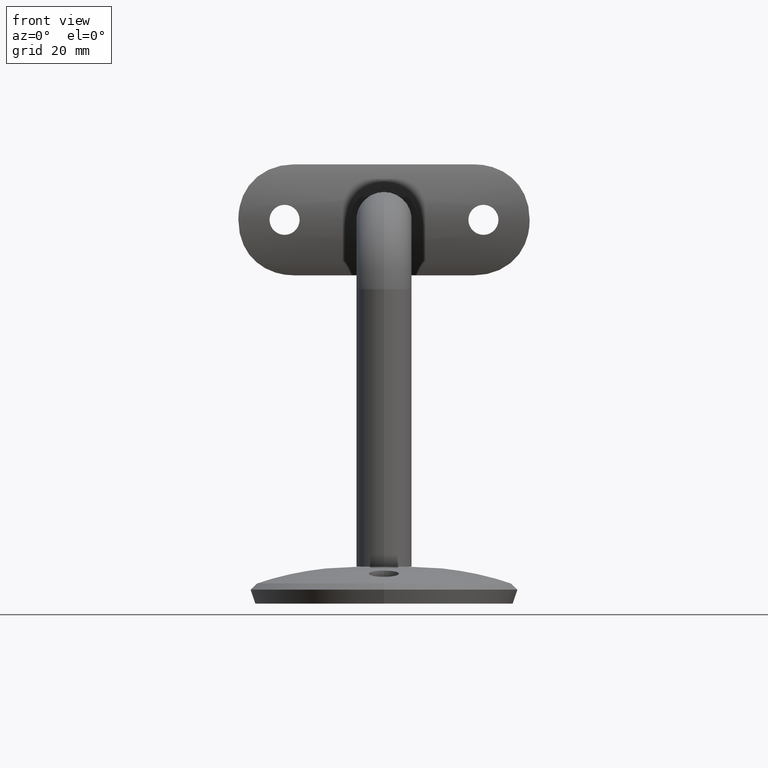
[diagram: clean part render]
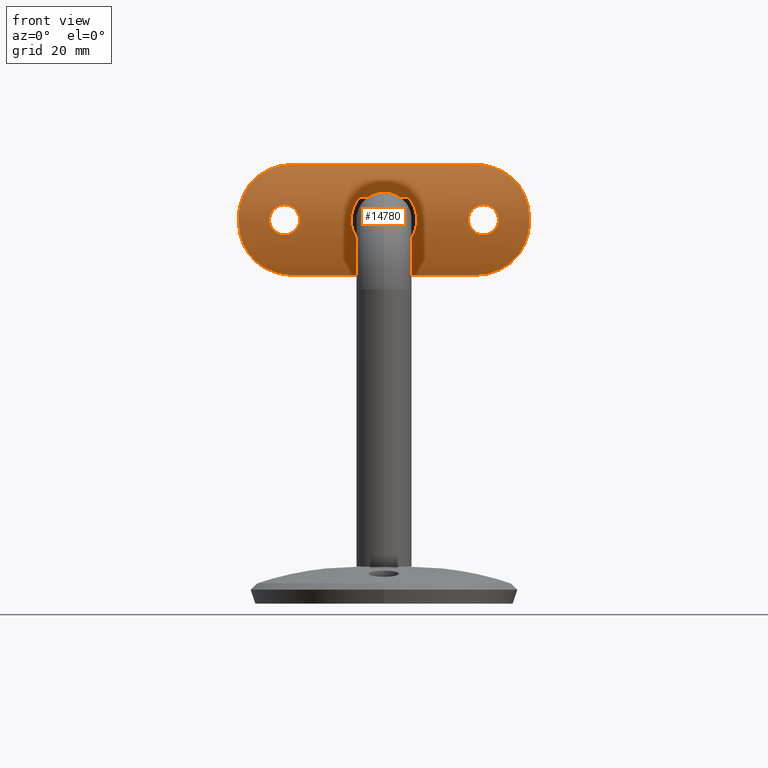
[diagram: same view with one face highlighted and labeled with its STEP entity id]
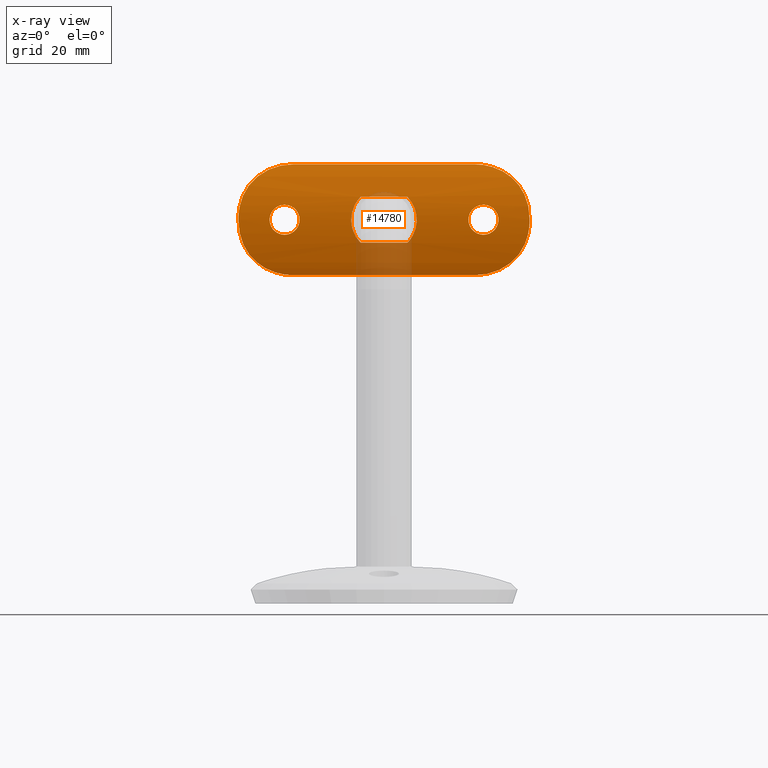
[diagram: x-ray of the same camera — body ghosted, the highlighted face saturated]
A machine part, front view. The second image highlights one B-rep face of the part: STEP entity #14780.
The next image is the same camera in x-ray: the body ghosted, the highlighted face saturated — about 7% of this face is hidden behind the body in this view.
In plain terms, the highlighted cylindrical surface (partial cylindrical patch) has radius 24.9 mm, axis along (-1, -0, -0).
Its self-contained STEP definition (entity closure, byte-faithful):
#27 = CARTESIAN_POINT ( 'NONE',  ( -2.821821168969854465, -3.539874073407934141, -23.12632054234559931 ) ) ;
#58 = EDGE_LOOP ( 'NONE', ( #2296, #10685, #10964, #12882, #10568, #4085 ) ) ;
#85 = EDGE_CURVE ( 'NONE', #3273, #16066, #12902, .T. ) ;
#101 = CARTESIAN_POINT ( 'NONE',  ( 2.584365611345395219, -3.565804050768281996, 19.51799543005816417 ) ) ;
#132 = CARTESIAN_POINT ( 'NONE',  ( -1.631627379172236214, -3.647122264414898396, -24.31886029199424470 ) ) ;
#150 = CARTESIAN_POINT ( 'NONE',  ( -2.146685540703188178, -3.607748755027697207, 19.05069189656504136 ) ) ;
#151 = CARTESIAN_POINT ( 'NONE',  ( 3.229256190507530988, -3.489748422613172973, 21.92447517388427869 ) ) ;
#201 = CARTESIAN_POINT ( 'NONE',  ( -2.819524886703820510, -3.540136434465608772, 19.86972966992424006 ) ) ;
#202 = CARTESIAN_POINT ( 'NONE',  ( 2.921291525389158927, -3.528178234305179295, 20.05987320755157555 ) ) ;
#210 = CARTESIAN_POINT ( 'NONE',  ( 3.704398101367908147, -3.423671542610197349, 6.061365502583002218 ) ) ;
#260 = CARTESIAN_POINT ( 'NONE',  ( 3.980101584964834788E-16, -3.699999999999955769, 18.25000000000000000 ) ) ;
#268 = CARTESIAN_POINT ( 'NONE',  ( -3.111721533360751746, -3.505646597793688812, 6.385896125220556385 ) ) ;
#309 = CARTESIAN_POINT ( 'NONE',  ( 1.981835697622200465, -3.621637099023633066, -24.08455317125303452 ) ) ;
#343 = CARTESIAN_POINT ( 'NONE',  ( 11.99999999999998224, -0.6176534026920421638, 19.50000000000000000 ) ) ;
#373 = CARTESIAN_POINT ( 'NONE',  ( -2.901699150288104434, -3.531270379057780850, 6.484038188702958116 ) ) ;
#415 = VERTEX_POINT ( 'NONE', #16284 ) ;
#518 = CARTESIAN_POINT ( 'NONE',  ( 7.494247687663859736, -2.555515036344145230, 29.19387504587054849 ) ) ;
#591 = EDGE_CURVE ( 'NONE', #1071, #415, #6147, .T. ) ;
#602 = CARTESIAN_POINT ( 'NONE',  ( -4.964876634922524623, -3.199999999999980638, 31.49999999999999289 ) ) ;
#703 = EDGE_CURVE ( 'NONE', #8314, #2510, #5169, .T. ) ;
#706 = CARTESIAN_POINT ( 'NONE',  ( -0.8125589719993389082, -3.699999999999994849, 31.50000000000000000 ) ) ;
#732 = CARTESIAN_POINT ( 'NONE',  ( 8.908510052025794934, -2.053669611251279115, -27.87937364185427569 ) ) ;
#785 = CARTESIAN_POINT ( 'NONE',  ( 2.794747767780301650, -3.545827601457929745, -31.23757162576539770 ) ) ;
#815 = CARTESIAN_POINT ( 'NONE',  ( -8.362564540343099040, -2.255537001843978206, 28.43211677885593858 ) ) ;
#816 = CARTESIAN_POINT ( 'NONE',  ( 3.084324042621155115, -3.508372835214869312, -20.45364702191493222 ) ) ;
#935 = CARTESIAN_POINT ( 'NONE',  ( -3.974160166930936100, -3.383932077341117672, -30.94271765376581484 ) ) ;
#1071 = VERTEX_POINT ( 'NONE', #13707 ) ;
#1210 = CARTESIAN_POINT ( 'NONE',  ( 0.4591875355903428657, -3.699999999999958433, -7.100000000000004086 ) ) ;
#1379 = CARTESIAN_POINT ( 'NONE',  ( -2.586209114153337651, -3.565612576627270602, 23.47967563857616469 ) ) ;
#1380 = CARTESIAN_POINT ( 'NONE',  ( 2.146750992436762484, -3.607753381938945125, 19.05052876677854456 ) ) ;
#1430 = CARTESIAN_POINT ( 'NONE',  ( -3.146818807308014776, -3.500389802327922961, 22.33960540480606483 ) ) ;
#1432 = CARTESIAN_POINT ( 'NONE',  ( 1.047393586680334332, -3.678741276189796405, 18.41603887102827031 ) ) ;
#1440 = CARTESIAN_POINT ( 'NONE',  ( -1.827830933494215104, -3.636904553612672508, 6.875981570658942665 ) ) ;
#1478 = CARTESIAN_POINT ( 'NONE',  ( -1.387778780781445676E-14, -3.700000000000009059, -31.50000000000000000 ) ) ;
#1488 = CARTESIAN_POINT ( 'NONE',  ( -3.082957173500505910, -3.508544189864433616, 20.44963851398086163 ) ) ;
#1489 = CARTESIAN_POINT ( 'NONE',  ( 2.148852459624776223, -3.607560168819034185, 23.94740334920764369 ) ) ;
#1738 = CARTESIAN_POINT ( 'NONE',  ( 4.352835420540750455, -3.319471389484620172, 30.82115928304209973 ) ) ;
#1893 = CARTESIAN_POINT ( 'NONE',  ( 1.427579796631251796E-14, -3.699999999999957989, -18.25000000000000000 ) ) ;
#1902 = CARTESIAN_POINT ( 'NONE',  ( 3.974160166930929883, -3.383932077341118561, 30.94271765376582550 ) ) ;
#1918 = CARTESIAN_POINT ( 'NONE',  ( 1.630997491512143238, -3.647151806679330921, -18.68093415040938865 ) ) ;
#1953 = CARTESIAN_POINT ( 'NONE',  ( 9.171811217397619842, -1.950748238831671699, 27.58196296880782228 ) ) ;
#1966 = ORIENTED_EDGE ( 'NONE', *, *, #12628, .T. ) ;
#1974 = CARTESIAN_POINT ( 'NONE',  ( 2.146750992436829097, -3.607753381938938908, -19.05052876677858720 ) ) ;
#2047 = CARTESIAN_POINT ( 'NONE',  ( 3.515929554202463336, -3.451370864205254740, -6.172583524609211558 ) ) ;
#2093 = CARTESIAN_POINT ( 'NONE',  ( -2.794747767780315861, -3.545827601457930189, 31.23757162576539415 ) ) ;
#2118 = CARTESIAN_POINT ( 'NONE',  ( -1.818617320225509815, -3.634477642372423656, -6.866971293440959911 ) ) ;
#2150 = CARTESIAN_POINT ( 'NONE',  ( -6.156121038829917680, -2.936724213265677896, 30.05584034722584619 ) ) ;
#2158 = CARTESIAN_POINT ( 'NONE',  ( -11.41507547166431102, -0.9296299401162885223, -23.45386468381837020 ) ) ;
#2257 = CARTESIAN_POINT ( 'NONE',  ( -11.99999999999998224, -0.6176534026920421638, -19.50000000000000355 ) ) ;
#2275 = CARTESIAN_POINT ( 'NONE',  ( -11.92848342012839602, -0.6574244313320016797, -21.11270732962849905 ) ) ;
#2296 = ORIENTED_EDGE ( 'NONE', *, *, #14938, .T. ) ;
#2325 = CARTESIAN_POINT ( 'NONE',  ( -10.51663599609495847, -1.374778303228647580, -25.65040292986301296 ) ) ;
#2391 = CARTESIAN_POINT ( 'NONE',  ( 12.00000000000003908, -0.6176534026920421638, -19.50000000000000355 ) ) ;
#2437 = CARTESIAN_POINT ( 'NONE',  ( -1.912593264708343122E-23, -3.699999999999955769, -7.100000000000000533 ) ) ;
#2510 = VERTEX_POINT ( 'NONE', #1893 ) ;
#2592 = CARTESIAN_POINT ( 'NONE',  ( -3.249848216891555897, -3.487010483052722432, -21.28285409738491296 ) ) ;
#2607 = CARTESIAN_POINT ( 'NONE',  ( 1.981835697622205128, -3.621637099023632622, 24.08455317125301320 ) ) ;
#2636 = LINE ( 'NONE', #10033, #4044 ) ;
#2650 = VERTEX_POINT ( 'NONE', #6074 ) ;
#2672 = CARTESIAN_POINT ( 'NONE',  ( 3.083248104138778256, -3.508505602359180298, 22.54922712429804932 ) ) ;
#2690 = CARTESIAN_POINT ( 'NONE',  ( -0.4273914753737551031, -3.697218224539782661, -24.72888696096771000 ) ) ;
#2703 = CARTESIAN_POINT ( 'NONE',  ( -3.228575707555535690, -3.489836929451472169, -21.07143069725907125 ) ) ;
#2704 = CARTESIAN_POINT ( 'NONE',  ( 0.000000000000000000, -3.699999999999994849, 31.50000000000000000 ) ) ;
#2727 = CARTESIAN_POINT ( 'NONE',  ( 2.894113515964097605, -3.532149142121155716, 6.487380250528087089 ) ) ;
#2773 = CARTESIAN_POINT ( 'NONE',  ( -0.4232112014913344544, -3.697288328665035095, 18.27057670183492988 ) ) ;
#2781 = CARTESIAN_POINT ( 'NONE',  ( -2.264874394996043705, -3.600457940495205289, 6.744685369997291069 ) ) ;
#2817 = B_SPLINE_CURVE_WITH_KNOTS ( 'NONE', 3,
 ( #8469, #9591, #9650, #785, #13457, #5835, #10881, #3363, #14957, #12166, #7198, #4492, #7138, #732, #9713, #7247, #3490, #11163, #4828, #13688, #6018, #11108, #11220, #15007 ),
 .UNSPECIFIED., .F., .F.,
 ( 4, 2, 2, 2, 2, 2, 2, 2, 2, 2, 2, 4 ),
 ( 1.077696660413050107E-18, 0.002406420888280984185, 0.003609631332421476928, 0.004812841776561968370, 0.007219262664842951253, 0.008422473108983443563, 0.009625683553123935005, 0.01082889399726442818, 0.01203210444140491789, 0.01443852532968589383, 0.01684494621796686978, 0.01925136710624784572 ),
 .UNSPECIFIED. ) ;
#2830 = CARTESIAN_POINT ( 'NONE',  ( 0.8447782825700491660, -3.686539391269241239, 18.35451960182217590 ) ) ;
#2838 = CARTESIAN_POINT ( 'NONE',  ( -4.964876634922537946, -3.199999999999980638, 5.075431016179841492 ) ) ;
#2844 = FACE_BOUND ( 'NONE', #10286, .T. ) ;
#2951 = B_SPLINE_CURVE_WITH_KNOTS ( 'NONE', 3,
 ( #2838, #9292, #7907, #15710, #8004, #268, #373, #2781, #1440, #10583, #15602, #10420, #5380, #15652, #9225, #14429, #13111, #2727, #13045, #5489, #210, #11865, #4195, #14373 ),
 .UNSPECIFIED., .F., .F.,
 ( 4, 2, 2, 2, 2, 2, 2, 2, 2, 2, 2, 4 ),
 ( 1.226634733346698579E-18, 0.001374055046406982969, 0.002061082569610473477, 0.002748110092813964202, 0.004122165139220946087, 0.005496220185627927537, 0.006870275232034908988, 0.007557302755238399714, 0.008244330278441892174, 0.008931357801645382899, 0.009618385324848873624, 0.01099244037125585507 ),
 .UNSPECIFIED. ) ;
#3049 = CARTESIAN_POINT ( 'NONE',  ( 0.2149818604170492253, -3.700000000000009059, -24.75000000000000355 ) ) ;
#3066 = DIRECTION ( 'NONE',  ( 1.232595164407830946E-30, 8.474091755303629748E-33, 1.000000000000000000 ) ) ;
#3070 = EDGE_CURVE ( 'NONE', #2510, #8314, #8122, .T. ) ;
#3159 = CARTESIAN_POINT ( 'NONE',  ( 3.229256190507538538, -3.489748422613169421, -21.92447517388432132 ) ) ;
#3182 = CARTESIAN_POINT ( 'NONE',  ( -0.9142097955992289915, -3.687338515416148432, -7.055981841108258656 ) ) ;
#3184 = EDGE_CURVE ( 'NONE', #13377, #3273, #2951, .T. ) ;
#3266 = CARTESIAN_POINT ( 'NONE',  ( 6.164181800682563939, -2.934852511962067645, 30.05211743802890823 ) ) ;
#3273 = VERTEX_POINT ( 'NONE', #5543 ) ;
#3285 = CARTESIAN_POINT ( 'NONE',  ( -11.92848259060793481, -0.6574309275929175467, 21.11410712426871683 ) ) ;
#3335 = CARTESIAN_POINT ( 'NONE',  ( -8.074259893479316830, -2.356718930519063449, 28.69397140321249395 ) ) ;
#3336 = CARTESIAN_POINT ( 'NONE',  ( 2.921124191385757740, -3.528196485631363011, -22.94025341122287287 ) ) ;
#3363 = CARTESIAN_POINT ( 'NONE',  ( 5.455945028680424969, -3.106646016184952952, -30.40527435075046014 ) ) ;
#3455 = CARTESIAN_POINT ( 'NONE',  ( 0.000000000000000000, -3.699999999999994849, 31.50000000000000000 ) ) ;
#3490 = CARTESIAN_POINT ( 'NONE',  ( 9.880202087646566156, -1.657055889912163016, -26.65553979867361889 ) ) ;
#3526 = CARTESIAN_POINT ( 'NONE',  ( -11.71658496996890975, -0.7713009744624380604, -22.29178284133482890 ) ) ;
#3583 = CARTESIAN_POINT ( 'NONE',  ( -3.198330643184877697, -3.496848918690147023, -31.15048156429586612 ) ) ;
#3693 = CARTESIAN_POINT ( 'NONE',  ( -8.096501375618343488, -2.354069913744659015, -28.70234642595244878 ) ) ;
#3906 = CARTESIAN_POINT ( 'NONE',  ( -0.8474384682299330729, -3.686461918805215010, -24.64487241752245339 ) ) ;
#3957 = CARTESIAN_POINT ( 'NONE',  ( -2.919465209628889113, -3.528394687198925794, -20.05618315748948177 ) ) ;
#3974 = CARTESIAN_POINT ( 'NONE',  ( 2.582737021104910990, -3.565979664869273424, 23.48434641144977419 ) ) ;
#4002 = CARTESIAN_POINT ( 'NONE',  ( -2.921499772798140437, -3.528153329608617383, -22.93967651103448446 ) ) ;
#4018 = CARTESIAN_POINT ( 'NONE',  ( 0.4263252820595279657, -3.697218336159312280, 24.72887954699843149 ) ) ;
#4044 = VECTOR ( 'NONE', #6066, 1000.000000000000000 ) ;
#4064 = EDGE_CURVE ( 'NONE', #9093, #10442, #5825, .T. ) ;
#4080 = CARTESIAN_POINT ( 'NONE',  ( -2.919465209628931301, -3.528394687198924018, 20.05618315748954217 ) ) ;
#4081 = CARTESIAN_POINT ( 'NONE',  ( 3.249921384642546318, -3.487000850647956618, 21.71342907918753440 ) ) ;
#4085 = ORIENTED_EDGE ( 'NONE', *, *, #15258, .T. ) ;
#4195 = CARTESIAN_POINT ( 'NONE',  ( 4.636296391438902376, -3.266859031703641225, 5.396854037863799469 ) ) ;
#4346 = B_SPLINE_CURVE_WITH_KNOTS ( 'NONE', 3,
 ( #343, #9601, #13308, #12062, #9428, #16140, #8417, #15962, #13537, #13419, #12233, #1953, #12178, #6923, #518, #3266, #9547, #1738, #1902, #4504, #13472, #13360, #4560, #5620 ),
 .UNSPECIFIED., .F., .F.,
 ( 4, 2, 2, 2, 2, 2, 2, 2, 2, 2, 2, 4 ),
 ( 0.000000000000000000, 0.002405426272235855392, 0.003608139408353788508, 0.004810852544471721191, 0.007216278816707587425, 0.008418991952825517072, 0.009621705088943447587, 0.01202713136117931382, 0.01443255763341518352, 0.01563527076953311751, 0.01683798390565105149, 0.01924341017788691946 ),
 .UNSPECIFIED. ) ;
#4403 = CARTESIAN_POINT ( 'NONE',  ( 2.449870133762150459, -3.579655042198059522, -19.35370424367749820 ) ) ;
#4427 = CARTESIAN_POINT ( 'NONE',  ( -3.506564222652053253, -3.452700319270811224, -6.177880390645243303 ) ) ;
#4464 = CARTESIAN_POINT ( 'NONE',  ( 3.083248104138781809, -3.508505602359182518, -22.54922712429809195 ) ) ;
#4492 = CARTESIAN_POINT ( 'NONE',  ( 8.074259893479313277, -2.356718930519062116, -28.69397140321249040 ) ) ;
#4504 = CARTESIAN_POINT ( 'NONE',  ( 3.198330643184871480, -3.496848918690146579, 31.15048156429586612 ) ) ;
#4520 = CARTESIAN_POINT ( 'NONE',  ( -7.144447545478611161, -2.655485527817194047, 29.42030368926515749 ) ) ;
#4521 = CARTESIAN_POINT ( 'NONE',  ( 2.584365611345454283, -3.565804050768279332, -19.51799543005821747 ) ) ;
#4546 = CARTESIAN_POINT ( 'NONE',  ( -2.258265762077044769, -3.598364552420600937, -6.735198545714672136 ) ) ;
#4560 = CARTESIAN_POINT ( 'NONE',  ( 0.8129078222397844167, -3.699999999999996625, 31.50000000000000711 ) ) ;
#4579 = CARTESIAN_POINT ( 'NONE',  ( -12.00000000000000711, -0.6176534026920280640, 20.31329885972720461 ) ) ;
#4580 = CARTESIAN_POINT ( 'NONE',  ( 0.2122259090402325021, -3.699999999999959766, -18.25000000000000711 ) ) ;
#4635 = CARTESIAN_POINT ( 'NONE',  ( 2.921291525389208221, -3.528178234305173966, -20.05987320755163594 ) ) ;
#4642 = CARTESIAN_POINT ( 'NONE',  ( 3.712115778710233460, -3.422492633365217696, -6.056552769143648263 ) ) ;
#4654 = CARTESIAN_POINT ( 'NONE',  ( 4.964876634922524623, -3.199999999999994404, -5.075431016179847710 ) ) ;
#4751 = CARTESIAN_POINT ( 'NONE',  ( -10.51395294504077427, -1.376102020913399615, 25.65610659191668219 ) ) ;
#4812 = CARTESIAN_POINT ( 'NONE',  ( -6.164181800682563939, -2.934852511962063204, -30.05211743802889757 ) ) ;
#4828 = CARTESIAN_POINT ( 'NONE',  ( 10.86337671054184817, -1.207519595627805753, -24.95273175522528675 ) ) ;
#4875 = CARTESIAN_POINT ( 'NONE',  ( -0.8129078222397800868, -3.700000000000009059, -31.50000000000000000 ) ) ;
#5093 = VERTEX_POINT ( 'NONE', #9136 ) ;
#5143 = CARTESIAN_POINT ( 'NONE',  ( -1.628227239447951780, -3.647344750715938222, -18.67919517067782564 ) ) ;
#5157 = CARTESIAN_POINT ( 'NONE',  ( 3.250078171915089964, -3.486980209873603354, 21.28897191030376490 ) ) ;
#5169 = B_SPLINE_CURVE_WITH_KNOTS ( 'NONE', 3,
 ( #11854, #3049, #8213, #5643, #9513, #14419, #6714, #309, #5478, #14468, #9743, #9565, #3336, #4464, #9799, #3159, #8272, #12316, #10969, #5707, #816, #4635, #5815, #4521, #4403, #1974, #9685, #1918, #13436, #15979, #5760, #14695, #4580, #13555 ),
 .UNSPECIFIED., .F., .F.,
 ( 4, 2, 2, 2, 2, 2, 2, 2, 2, 2, 2, 2, 2, 2, 2, 2, 4 ),
 ( 8.612190294667262780E-19, 0.0006357393811927986461, 0.001271478762385596425, 0.001907218143578394420, 0.002542957524771191982, 0.003178696905963989978, 0.003814436287156787973, 0.004450175668349585535, 0.005085915049542383097, 0.005721654430735180659, 0.006357393811927979088, 0.006993133193120776650, 0.007628872574313575079, 0.008264611955506371774, 0.008900351336699169336, 0.009536090717891966898, 0.01017183009908476272 ),
 .UNSPECIFIED. ) ;
#5194 = CARTESIAN_POINT ( 'NONE',  ( -1.052308858703521199, -3.678523263202700733, -24.58219453111725272 ) ) ;
#5211 = CARTESIAN_POINT ( 'NONE',  ( 3.980101584964834788E-16, -3.699999999999955769, 18.25000000000000000 ) ) ;
#5247 = CARTESIAN_POINT ( 'NONE',  ( -2.819524886703771216, -3.540136434465613657, -19.86972966992417611 ) ) ;
#5268 = CARTESIAN_POINT ( 'NONE',  ( -0.2121748390877018497, -3.699999999999955769, 18.24999999999999645 ) ) ;
#5270 = CARTESIAN_POINT ( 'NONE',  ( 3.228883512651747445, -3.489796806255346162, 21.07337049124385331 ) ) ;
#5325 = EDGE_CURVE ( 'NONE', #5093, #2650, #6503, .T. ) ;
#5368 = EDGE_CURVE ( 'NONE', #9518, #10442, #2817, .T. ) ;
#5371 = CARTESIAN_POINT ( 'NONE',  ( -0.8474384682299345162, -3.686461918805215898, 24.64487241752246760 ) ) ;
#5380 = CARTESIAN_POINT ( 'NONE',  ( 0.9113910570558695357, -3.687447184312834469, 7.056363803575781191 ) ) ;
#5412 = B_SPLINE_CURVE_WITH_KNOTS ( 'NONE', 3,
 ( #3455, #706, #9684, #2093, #9854, #10912, #11020, #8504, #2150, #4520, #6049, #3335, #815, #11136, #5992, #14868, #12420, #4751, #12315, #13492, #5814, #3285, #4579, #7170 ),
 .UNSPECIFIED., .F., .F.,
 ( 4, 2, 2, 2, 2, 2, 2, 2, 2, 2, 2, 4 ),
 ( 1.355197106528107208E-17, 0.002406420888280987221, 0.003609631332421476060, 0.004812841776561964900, 0.007219262664842946049, 0.008422473108983440093, 0.009625683553123935005, 0.01082889399726443165, 0.01203210444140492656, 0.01443852532968591985, 0.01684494621796691141, 0.01925136710624790817 ),
 .UNSPECIFIED. ) ;
#5478 = CARTESIAN_POINT ( 'NONE',  ( 2.148852459624776667, -3.607560168819032409, -23.94740334920767211 ) ) ;
#5489 = CARTESIAN_POINT ( 'NONE',  ( 3.505576954194434602, -3.452841900581999024, 6.178445786202248158 ) ) ;
#5495 = ORIENTED_EDGE ( 'NONE', *, *, #3184, .T. ) ;
#5543 = CARTESIAN_POINT ( 'NONE',  ( 4.964876634922524623, -3.199999999999994404, 5.075431016179845933 ) ) ;
#5558 = CARTESIAN_POINT ( 'NONE',  ( -0.4586185383962279594, -3.699999999999956657, -7.100000000000003197 ) ) ;
#5620 = CARTESIAN_POINT ( 'NONE',  ( 0.000000000000000000, -3.699999999999994849, 31.50000000000000000 ) ) ;
#5643 = CARTESIAN_POINT ( 'NONE',  ( 0.8420467231033936795, -3.686626758976825791, -24.64616809647208839 ) ) ;
#5707 = CARTESIAN_POINT ( 'NONE',  ( 3.145785620554968354, -3.500522016790668545, -20.65635652937660538 ) ) ;
#5760 = CARTESIAN_POINT ( 'NONE',  ( 0.8447782825700990150, -3.686539391269237687, -18.35451960182218301 ) ) ;
#5814 = CARTESIAN_POINT ( 'NONE',  ( -11.64449887647194792, -0.8100347474686064864, 22.69149219421942476 ) ) ;
#5815 = CARTESIAN_POINT ( 'NONE',  ( 2.819576935934251072, -3.540128976957720663, -19.86988539337790272 ) ) ;
#5825 = LINE ( 'NONE', #11049, #8222 ) ;
#5835 = CARTESIAN_POINT ( 'NONE',  ( 3.959980470126862162, -3.386209395477720374, -30.94697538539422155 ) ) ;
#5886 = CARTESIAN_POINT ( 'NONE',  ( 4.964876634922524623, -3.199999999999994404, -5.075431016179847710 ) ) ;
#5945 = CARTESIAN_POINT ( 'NONE',  ( 2.263000646222576684, -3.600634038521774105, -6.745332863304843940 ) ) ;
#5992 = CARTESIAN_POINT ( 'NONE',  ( -9.166149050193574510, -1.952978448765979591, 27.58848537800124134 ) ) ;
#6003 = CARTESIAN_POINT ( 'NONE',  ( 4.281639884066061441, -3.332128893389513458, -5.681909881638310011 ) ) ;
#6018 = CARTESIAN_POINT ( 'NONE',  ( 11.64449887647196391, -0.8100347474685984928, -22.69149219421943897 ) ) ;
#6049 = CARTESIAN_POINT ( 'NONE',  ( -7.465386431756488861, -2.556697687672626618, 29.18815436188812740 ) ) ;
#6055 = CARTESIAN_POINT ( 'NONE',  ( -11.28972141810762508, -0.9940804612480560465, -23.83666306912913413 ) ) ;
#6066 = DIRECTION ( 'NONE',  ( -1.232595164407830946E-30, -8.474091755303629748E-33, -1.000000000000000000 ) ) ;
#6074 = CARTESIAN_POINT ( 'NONE',  ( -4.964876634922524623, -3.199999999999980638, -5.075431016179843269 ) ) ;
#6121 = CARTESIAN_POINT ( 'NONE',  ( -9.171811217397602078, -1.950748238831676806, -27.58196296880780807 ) ) ;
#6147 = B_SPLINE_CURVE_WITH_KNOTS ( 'NONE', 3,
 ( #260, #5268, #2773, #15544, #9164, #10464, #14251, #6555, #150, #7897, #6449, #201, #4080, #1488, #12987, #6605, #11700, #7787, #11747, #1430, #6658, #7744, #9061, #1379, #13036, #12885, #14364, #7944, #14307, #12823, #5371, #15486, #15642, #11593 ),
 .UNSPECIFIED., .F., .F.,
 ( 4, 2, 2, 2, 2, 2, 2, 2, 2, 2, 2, 2, 2, 2, 2, 2, 4 ),
 ( 0.01017183009908487201, 0.01080741649622329187, 0.01144300289336171172, 0.01207858929050013158, 0.01271417568763854970, 0.01334976208477696956, 0.01398534848191538768, 0.01462093487905380754, 0.01525652127619222739, 0.01589210767333064378, 0.01652769407046906364, 0.01716328046760748349, 0.01779886686474590335, 0.01843445326188432321, 0.01907003965902274306, 0.01970562605616116292, 0.02034121245329958277 ),
 .UNSPECIFIED. ) ;
#6278 = CARTESIAN_POINT ( 'NONE',  ( -10.86543210599208287, -1.206527040695204667, -24.94850832163288601 ) ) ;
#6292 = FACE_OUTER_BOUND ( 'NONE', #58, .T. ) ;
#6449 = CARTESIAN_POINT ( 'NONE',  ( -2.583679710951853448, -3.565877140410970814, 19.51704738153347662 ) ) ;
#6450 = CARTESIAN_POINT ( 'NONE',  ( 0.2122259090402204007, -3.699999999999955325, 18.24999999999999645 ) ) ;
#6491 = CARTESIAN_POINT ( 'NONE',  ( -2.150086282832403661, -3.607452471063070654, -23.94631227737822954 ) ) ;
#6498 = VECTOR ( 'NONE', #14082, 1000.000000000000000 ) ;
#6503 = B_SPLINE_CURVE_WITH_KNOTS ( 'NONE', 3,
 ( #13125, #5558, #3182, #16240, #2118, #4546, #12340, #11042, #8527, #4427, #10994, #7081, #7016, #16182 ),
 .UNSPECIFIED., .F., .F.,
 ( 4, 2, 2, 2, 2, 2, 4 ),
 ( 0.005499627587204901011, 0.006872830783217636491, 0.007559432381224003364, 0.008246033979230371971, 0.008932635577236738844, 0.009619237175243107452, 0.01099244037125584467 ),
 .UNSPECIFIED. ) ;
#6511 = CARTESIAN_POINT ( 'NONE',  ( 2.448290363575883255, -3.579799892622895108, 23.64784178713651741 ) ) ;
#6555 = CARTESIAN_POINT ( 'NONE',  ( -1.983184028264872945, -3.621535935841004417, 18.91638916660368963 ) ) ;
#6605 = CARTESIAN_POINT ( 'NONE',  ( -3.228575707555557006, -3.489836929451471725, 21.07143069725913165 ) ) ;
#6606 = CARTESIAN_POINT ( 'NONE',  ( 2.449870133762092728, -3.579655042198061743, 19.35370424367744846 ) ) ;
#6658 = CARTESIAN_POINT ( 'NONE',  ( -3.084351378400045807, -3.508369120394307483, 22.54623417715432510 ) ) ;
#6673 = FACE_BOUND ( 'NONE', #11844, .T. ) ;
#6714 = CARTESIAN_POINT ( 'NONE',  ( 1.628699641122153041, -3.647307268334019525, -24.32044771382352977 ) ) ;
#6923 = CARTESIAN_POINT ( 'NONE',  ( 8.096501375618352370, -2.354069913744651910, 28.70234642595246299 ) ) ;
#6953 = CARTESIAN_POINT ( 'NONE',  ( 1.387778780781445676E-14, -3.699999999999994849, -24.75000000000000000 ) ) ;
#7016 = CARTESIAN_POINT ( 'NONE',  ( -4.636500095948909106, -3.266817582205193027, -5.396654770499321963 ) ) ;
#7081 = CARTESIAN_POINT ( 'NONE',  ( -4.280658070604807186, -3.332362613302141785, -5.683006983233183540 ) ) ;
#7097 = CARTESIAN_POINT ( 'NONE',  ( -4.964876634922537946, -3.199999999999980638, 5.075431016179841492 ) ) ;
#7138 = CARTESIAN_POINT ( 'NONE',  ( 8.362564540343097264, -2.255537001843978206, -28.43211677885594568 ) ) ;
#7170 = CARTESIAN_POINT ( 'NONE',  ( -12.00000000000001066, -0.6176534026920282860, 19.50000000000000000 ) ) ;
#7198 = CARTESIAN_POINT ( 'NONE',  ( 7.465386431756487084, -2.556697687672626174, -29.18815436188814161 ) ) ;
#7204 = DIRECTION ( 'NONE',  ( -1.232595164407830946E-30, -8.474091755303629748E-33, -1.000000000000000000 ) ) ;
#7247 = CARTESIAN_POINT ( 'NONE',  ( 9.651496139240752115, -1.754897554413251237, -26.97737785628718399 ) ) ;
#7403 = CARTESIAN_POINT ( 'NONE',  ( -11.62834804759313201, -0.8183103573893794058, -22.68144421163976787 ) ) ;
#7730 = CARTESIAN_POINT ( 'NONE',  ( -3.145628655883404345, -3.500541877894270737, -20.65596617013608594 ) ) ;
#7744 = CARTESIAN_POINT ( 'NONE',  ( -2.921499772798139549, -3.528153329608616051, 22.93967651103450223 ) ) ;
#7787 = CARTESIAN_POINT ( 'NONE',  ( -3.250150178362256170, -3.486970730352475734, 21.71257844186941099 ) ) ;
#7788 = CARTESIAN_POINT ( 'NONE',  ( 2.820318138835672173, -3.540050219768325679, 23.12909999587930798 ) ) ;
#7820 = CARTESIAN_POINT ( 'NONE',  ( -2.586209114153338540, -3.565612576627267494, -23.47967563857614692 ) ) ;
#7897 = CARTESIAN_POINT ( 'NONE',  ( -2.446447891969488087, -3.579982845335476060, 19.35005541743644386 ) ) ;
#7898 = CARTESIAN_POINT ( 'NONE',  ( 1.440859961367725983, -3.659057170068545695, 18.57908025749507175 ) ) ;
#7907 = CARTESIAN_POINT ( 'NONE',  ( -4.282078825921497689, -3.332048076451957552, 5.681556398469048474 ) ) ;
#7944 = CARTESIAN_POINT ( 'NONE',  ( -1.631627379172226666, -3.647122264414895731, 24.31886029199425536 ) ) ;
#8004 = CARTESIAN_POINT ( 'NONE',  ( -3.516909975170976477, -3.451229765324057563, 6.172019479054712932 ) ) ;
#8036 = CARTESIAN_POINT ( 'NONE',  ( -12.00000000000001066, -0.6176534026920282860, 19.50000000000000000 ) ) ;
#8084 = ORIENTED_EDGE ( 'NONE', *, *, #5325, .T. ) ;
#8094 = ORIENTED_EDGE ( 'NONE', *, *, #703, .F. ) ;
#8122 = B_SPLINE_CURVE_WITH_KNOTS ( 'NONE', 3,
 ( #8726, #11623, #15425, #15470, #12809, #12866, #5143, #10348, #14186, #12920, #12967, #5247, #3957, #14136, #7730, #2703, #2592, #10395, #14238, #15527, #11680, #4002, #27, #7820, #10294, #6491, #8991, #132, #11576, #5194, #3906, #2690, #8184, #13287 ),
 .UNSPECIFIED., .F., .F.,
 ( 4, 2, 2, 2, 2, 2, 2, 2, 2, 2, 2, 2, 2, 2, 2, 2, 4 ),
 ( 0.01017183009908476272, 0.01080741649622319125, 0.01144300289336161978, 0.01207858929050004831, 0.01271417568763847858, 0.01334976208477690537, 0.01398534848191533390, 0.01462093487905376070, 0.01525652127619218923, 0.01589210767333061602, 0.01652769407046904282, 0.01716328046760746961, 0.01779886686474589988, 0.01843445326188433014, 0.01907003965902275694, 0.01970562605616118373, 0.02034121245329961053 ),
 .UNSPECIFIED. ) ;
#8184 = CARTESIAN_POINT ( 'NONE',  ( -0.2149301272735424095, -3.700000000000009948, -24.75000000000000711 ) ) ;
#8213 = CARTESIAN_POINT ( 'NONE',  ( 0.4263252820595374026, -3.697218336159310503, -24.72887954699843505 ) ) ;
#8222 = VECTOR ( 'NONE', #7204, 1000.000000000000000 ) ;
#8272 = CARTESIAN_POINT ( 'NONE',  ( 3.249921384642556976, -3.487000850647957062, -21.71342907918760190 ) ) ;
#8314 = VERTEX_POINT ( 'NONE', #6953 ) ;
#8417 = CARTESIAN_POINT ( 'NONE',  ( 11.28972141810765173, -0.9940804612480439451, 23.83666306912914834 ) ) ;
#8469 = CARTESIAN_POINT ( 'NONE',  ( -1.387778780781445676E-14, -3.700000000000009059, -31.50000000000000000 ) ) ;
#8504 = CARTESIAN_POINT ( 'NONE',  ( -5.455945028680426745, -3.106646016184956949, 30.40527435075045304 ) ) ;
#8527 = CARTESIAN_POINT ( 'NONE',  ( -3.102125699781536738, -3.506850099154959377, -6.390541049978265775 ) ) ;
#8559 = CARTESIAN_POINT ( 'NONE',  ( -8.913816326006855917, -2.051629287276890423, -27.87356755031017741 ) ) ;
#8610 = CARTESIAN_POINT ( 'NONE',  ( -5.461449533831193470, -3.105332391508203393, -30.40257824629768635 ) ) ;
#8726 = CARTESIAN_POINT ( 'NONE',  ( 1.427579796631251796E-14, -3.699999999999957989, -18.25000000000000000 ) ) ;
#8778 = CARTESIAN_POINT ( 'NONE',  ( -1.615684953159067350, -3.660259510916433978, -31.43706210126418554 ) ) ;
#8871 = FACE_BOUND ( 'NONE', #16669, .T. ) ;
#8991 = CARTESIAN_POINT ( 'NONE',  ( -1.986735340249592197, -3.621252494889342088, -24.08090370569103911 ) ) ;
#9061 = CARTESIAN_POINT ( 'NONE',  ( -2.821821168969855798, -3.539874073407938138, 23.12632054234562062 ) ) ;
#9093 = VERTEX_POINT ( 'NONE', #11809 ) ;
#9117 = CARTESIAN_POINT ( 'NONE',  ( 3.084324042621118256, -3.508372835214873309, 20.45364702191486828 ) ) ;
#9136 = CARTESIAN_POINT ( 'NONE',  ( -1.912593264708343122E-23, -3.699999999999955769, -7.100000000000000533 ) ) ;
#9164 = CARTESIAN_POINT ( 'NONE',  ( -1.047902027870931008, -3.678710684825324595, 18.41629945653652101 ) ) ;
#9201 = EDGE_CURVE ( 'NONE', #16066, #5093, #12991, .T. ) ;
#9225 = CARTESIAN_POINT ( 'NONE',  ( 1.816407414500716078, -3.634640825242651196, 6.867561215927577400 ) ) ;
#9292 = CARTESIAN_POINT ( 'NONE',  ( -4.636331865773972716, -3.266851813437346319, 5.396819336240088028 ) ) ;
#9428 = CARTESIAN_POINT ( 'NONE',  ( 11.62834804759316043, -0.8183103573893641958, 22.68144421163977142 ) ) ;
#9513 = CARTESIAN_POINT ( 'NONE',  ( 1.048596989939906132, -3.678690743907806038, -24.58355611844455524 ) ) ;
#9518 = VERTEX_POINT ( 'NONE', #1478 ) ;
#9547 = CARTESIAN_POINT ( 'NONE',  ( 5.461449533831189918, -3.105332391508201617, 30.40257824629771122 ) ) ;
#9565 = CARTESIAN_POINT ( 'NONE',  ( 2.820318138835721467, -3.540050219768321238, -23.12909999587925114 ) ) ;
#9591 = CARTESIAN_POINT ( 'NONE',  ( 0.8125589719993400184, -3.699999999999995293, -31.50000000000000000 ) ) ;
#9601 = CARTESIAN_POINT ( 'NONE',  ( 11.99999999999998224, -0.6176534026920420528, 20.31330633155847210 ) ) ;
#9650 = CARTESIAN_POINT ( 'NONE',  ( 1.613102312184466980, -3.660295573399607871, -31.43708710865749367 ) ) ;
#9670 = VERTEX_POINT ( 'NONE', #2257 ) ;
#9684 = CARTESIAN_POINT ( 'NONE',  ( -1.613102312184478082, -3.660295573399607427, 31.43708710865748301 ) ) ;
#9685 = CARTESIAN_POINT ( 'NONE',  ( 1.982803818389583528, -3.621555042729827534, -18.91624805768305606 ) ) ;
#9713 = CARTESIAN_POINT ( 'NONE',  ( 9.166149050193579839, -1.952978448765980479, -27.58848537800126266 ) ) ;
#9743 = CARTESIAN_POINT ( 'NONE',  ( 2.582737021104940744, -3.565979664869272536, -23.48434641144975998 ) ) ;
#9755 = CARTESIAN_POINT ( 'NONE',  ( 4.636128183256395197, -3.266893258460819460, -5.397018582091170913 ) ) ;
#9799 = CARTESIAN_POINT ( 'NONE',  ( 3.145741730984334072, -3.500527963543703880, -22.34414671658372598 ) ) ;
#9854 = CARTESIAN_POINT ( 'NONE',  ( -3.185422266228734589, -3.498506488204446985, 31.15346151089248750 ) ) ;
#10033 = CARTESIAN_POINT ( 'NONE',  ( -11.99999999999998224, -0.6176534026920282860, 31.49999999999999289 ) ) ;
#10149 = CARTESIAN_POINT ( 'NONE',  ( 0.000000000000000000, -3.699999999999994849, 24.74999999999999645 ) ) ;
#10286 = EDGE_LOOP ( 'NONE', ( #8094, #11127 ) ) ;
#10294 = CARTESIAN_POINT ( 'NONE',  ( -2.449262616600626608, -3.579703020064626262, -23.64672481166034856 ) ) ;
#10348 = CARTESIAN_POINT ( 'NONE',  ( -1.983184028264795673, -3.621535935841007525, -18.91638916660364345 ) ) ;
#10395 = CARTESIAN_POINT ( 'NONE',  ( -3.250150178362246844, -3.486970730352478842, -21.71257844186934705 ) ) ;
#10420 = CARTESIAN_POINT ( 'NONE',  ( 0.4555041638599978127, -3.700062688236566810, 7.100219850317972536 ) ) ;
#10442 = VERTEX_POINT ( 'NONE', #2391 ) ;
#10464 = CARTESIAN_POINT ( 'NONE',  ( -1.439045858799200106, -3.659153063118034233, 18.57827880898163642 ) ) ;
#10477 = ORIENTED_EDGE ( 'NONE', *, *, #9201, .T. ) ;
#10568 = ORIENTED_EDGE ( 'NONE', *, *, #15558, .T. ) ;
#10583 = CARTESIAN_POINT ( 'NONE',  ( -0.9285590918302099039, -3.686754945948330420, 7.053925608798211400 ) ) ;
#10595 = LINE ( 'NONE', #602, #12981 ) ;
#10685 = ORIENTED_EDGE ( 'NONE', *, *, #11555, .T. ) ;
#10708 = CARTESIAN_POINT ( 'NONE',  ( 0.000000000000000000, 21.20000000000003837, 31.49999999999983302 ) ) ;
#10881 = CARTESIAN_POINT ( 'NONE',  ( 4.343585444218811098, -3.321130880666872898, -30.82433790244266447 ) ) ;
#10912 = CARTESIAN_POINT ( 'NONE',  ( -3.959980470126878593, -3.386209395477715489, 30.94697538539420734 ) ) ;
#10964 = ORIENTED_EDGE ( 'NONE', *, *, #5368, .T. ) ;
#10969 = CARTESIAN_POINT ( 'NONE',  ( 3.228883512651770982, -3.489796806255342609, -21.07337049124391370 ) ) ;
#10994 = CARTESIAN_POINT ( 'NONE',  ( -3.705248419110428237, -3.423542522952965239, -6.060840257332938741 ) ) ;
#11020 = CARTESIAN_POINT ( 'NONE',  ( -4.343585444218804881, -3.321130880666874674, 30.82433790244266092 ) ) ;
#11042 = CARTESIAN_POINT ( 'NONE',  ( -2.895531408592574074, -3.531981876424771016, -6.486742510624910807 ) ) ;
#11049 = CARTESIAN_POINT ( 'NONE',  ( 11.99999999999999645, -0.6176534026917090969, 31.50000000000000000 ) ) ;
#11108 = CARTESIAN_POINT ( 'NONE',  ( 11.92848259060794547, -0.6574309275929089980, -21.11410712426873104 ) ) ;
#11127 = ORIENTED_EDGE ( 'NONE', *, *, #3070, .F. ) ;
#11136 = CARTESIAN_POINT ( 'NONE',  ( -8.908510052025787829, -2.053669611251280003, 27.87937364185425793 ) ) ;
#11163 = CARTESIAN_POINT ( 'NONE',  ( 10.51395294504078670, -1.376102020913393842, -25.65610659191669995 ) ) ;
#11202 = CARTESIAN_POINT ( 'NONE',  ( -11.99999999999998224, -0.6176534026920421638, -19.50000000000000355 ) ) ;
#11220 = CARTESIAN_POINT ( 'NONE',  ( 12.00000000000004086, -0.6176534026920421638, -20.31329885972721172 ) ) ;
#11319 = CARTESIAN_POINT ( 'NONE',  ( -2.803457390454650699, -3.544875466738512948, -31.23589290901536941 ) ) ;
#11366 = CARTESIAN_POINT ( 'NONE',  ( -9.887935222964594928, -1.653693335105058448, -26.64406495904743011 ) ) ;
#11555 = EDGE_CURVE ( 'NONE', #9670, #9518, #13968, .T. ) ;
#11576 = CARTESIAN_POINT ( 'NONE',  ( -1.443090599177618172, -3.658917177029031631, -24.41972029213760820 ) ) ;
#11593 = CARTESIAN_POINT ( 'NONE',  ( 0.000000000000000000, -3.699999999999994849, 24.74999999999999645 ) ) ;
#11623 = CARTESIAN_POINT ( 'NONE',  ( -0.2121748390876914692, -3.699999999999957989, -18.24999999999999289 ) ) ;
#11639 = CARTESIAN_POINT ( 'NONE',  ( 1.982803818389511141, -3.621555042729831531, 18.91624805768300632 ) ) ;
#11680 = CARTESIAN_POINT ( 'NONE',  ( -3.084351378400050248, -3.508369120394307483, -22.54623417715427536 ) ) ;
#11690 = VERTEX_POINT ( 'NONE', #2704 ) ;
#11700 = CARTESIAN_POINT ( 'NONE',  ( -3.249848216891571884, -3.487010483052713994, 21.28285409738498046 ) ) ;
#11701 = CARTESIAN_POINT ( 'NONE',  ( 1.442102780649956228, -3.658985263850909497, 24.42031052337752328 ) ) ;
#11717 = VERTEX_POINT ( 'NONE', #8036 ) ;
#11742 = CARTESIAN_POINT ( 'NONE',  ( 4.964876634922524623, -3.199999999999994404, 31.49999999999998579 ) ) ;
#11747 = CARTESIAN_POINT ( 'NONE',  ( -3.229201240444566690, -3.489754643205427609, 21.92386930829948355 ) ) ;
#11809 = CARTESIAN_POINT ( 'NONE',  ( 11.99999999999998224, -0.6176534026920421638, 19.50000000000000000 ) ) ;
#11844 = EDGE_LOOP ( 'NONE', ( #5495, #15191, #10477, #8084, #14951 ) ) ;
#11854 = CARTESIAN_POINT ( 'NONE',  ( 1.387778780781445676E-14, -3.699999999999994849, -24.75000000000000000 ) ) ;
#11865 = CARTESIAN_POINT ( 'NONE',  ( 4.280216917462788651, -3.332443931792640868, 5.683362678621755926 ) ) ;
#12062 = CARTESIAN_POINT ( 'NONE',  ( 11.71658496996893284, -0.7713009744624195196, 22.29178284133484311 ) ) ;
#12166 = CARTESIAN_POINT ( 'NONE',  ( 7.144447545478609385, -2.655485527817194047, -29.42030368926517170 ) ) ;
#12178 = CARTESIAN_POINT ( 'NONE',  ( 8.913816326006871904, -2.051629287276880653, 27.87356755031019873 ) ) ;
#12233 = CARTESIAN_POINT ( 'NONE',  ( 9.659094786861164295, -1.751713507356701838, 26.96718664785970532 ) ) ;
#12315 = CARTESIAN_POINT ( 'NONE',  ( -10.86337671054183573, -1.207519595627810416, 24.95273175522527609 ) ) ;
#12316 = CARTESIAN_POINT ( 'NONE',  ( 3.250078171915108172, -3.486980209873601577, -21.28897191030382174 ) ) ;
#12328 = CARTESIAN_POINT ( 'NONE',  ( 3.110441035698499501, -3.505809087705364480, -6.386525233789831724 ) ) ;
#12340 = CARTESIAN_POINT ( 'NONE',  ( -2.473601289892181310, -3.577738523372005375, -6.659071046019722218 ) ) ;
#12420 = CARTESIAN_POINT ( 'NONE',  ( -9.880202087646559050, -1.657055889912167679, 26.65553979867359757 ) ) ;
#12486 = CARTESIAN_POINT ( 'NONE',  ( -9.659094786861142978, -1.751713507356708499, -26.96718664785969111 ) ) ;
#12628 = EDGE_CURVE ( 'NONE', #415, #1071, #15269, .T. ) ;
#12685 = CYLINDRICAL_SURFACE ( 'NONE', #15615, 24.89999999999999503 ) ;
#12809 = CARTESIAN_POINT ( 'NONE',  ( -1.047902027870888153, -3.678710684825330368, -18.41629945653651390 ) ) ;
#12823 = CARTESIAN_POINT ( 'NONE',  ( -1.052308858703524752, -3.678523263202694071, 24.58219453111724917 ) ) ;
#12866 = CARTESIAN_POINT ( 'NONE',  ( -1.439045858799136823, -3.659153063118039118, -18.57827880898160444 ) ) ;
#12882 = ORIENTED_EDGE ( 'NONE', *, *, #4064, .F. ) ;
#12885 = CARTESIAN_POINT ( 'NONE',  ( -2.150086282832419649, -3.607452471063068877, 23.94631227737821888 ) ) ;
#12887 = CARTESIAN_POINT ( 'NONE',  ( 1.048596989939901469, -3.678690743907807370, 24.58355611844454813 ) ) ;
#12902 = LINE ( 'NONE', #11742, #6498 ) ;
#12920 = CARTESIAN_POINT ( 'NONE',  ( -2.446447891969427246, -3.579982845335481390, -19.35005541743639057 ) ) ;
#12937 = CARTESIAN_POINT ( 'NONE',  ( 0.2149818604170374570, -3.699999999999995737, 24.75000000000000000 ) ) ;
#12967 = CARTESIAN_POINT ( 'NONE',  ( -2.583679710951794384, -3.565877140410975255, -19.51704738153341978 ) ) ;
#12981 = VECTOR ( 'NONE', #3066, 1000.000000000000000 ) ;
#12987 = CARTESIAN_POINT ( 'NONE',  ( -3.145628655883435432, -3.500541877894269849, 20.65596617013615344 ) ) ;
#12988 = CARTESIAN_POINT ( 'NONE',  ( 0.8420467231033889055, -3.686626758976826235, 24.64616809647208484 ) ) ;
#12991 = B_SPLINE_CURVE_WITH_KNOTS ( 'NONE', 3,
 ( #5886, #9755, #6003, #4642, #2047, #12328, #13620, #5945, #14942, #16222, #1210, #2437 ),
 .UNSPECIFIED., .F., .F.,
 ( 4, 2, 2, 2, 2, 4 ),
 ( 1.226634733346699349E-18, 0.001374906896801229590, 0.002062360345201841999, 0.002749813793602454409, 0.004124720690403677059, 0.005499627587204901011 ),
 .UNSPECIFIED. ) ;
#13036 = CARTESIAN_POINT ( 'NONE',  ( -2.449262616600665687, -3.579703020064622265, 23.64672481166031304 ) ) ;
#13037 = CARTESIAN_POINT ( 'NONE',  ( 2.921124191385758184, -3.528196485631363011, 22.94025341122284445 ) ) ;
#13045 = CARTESIAN_POINT ( 'NONE',  ( 3.100854879138934539, -3.507010798058734391, 6.391162737197333854 ) ) ;
#13111 = CARTESIAN_POINT ( 'NONE',  ( 2.471878148250398866, -3.577911789567993939, 6.659715758080830383 ) ) ;
#13125 = CARTESIAN_POINT ( 'NONE',  ( -1.912593264708343122E-23, -3.699999999999955769, -7.100000000000000533 ) ) ;
#13287 = CARTESIAN_POINT ( 'NONE',  ( 1.387778780781445676E-14, -3.699999999999994849, -24.75000000000000000 ) ) ;
#13308 = CARTESIAN_POINT ( 'NONE',  ( 11.92848342012842799, -0.6574244313319824728, 21.11270732962850616 ) ) ;
#13360 = CARTESIAN_POINT ( 'NONE',  ( 1.615684953159056469, -3.660259510916432646, 31.43706210126420686 ) ) ;
#13377 = VERTEX_POINT ( 'NONE', #7097 ) ;
#13401 = DIRECTION ( 'NONE',  ( -1.232595164407830946E-30, -8.474091755303629748E-33, -1.000000000000000000 ) ) ;
#13419 = CARTESIAN_POINT ( 'NONE',  ( 9.887935222964623350, -1.653693335105051121, 26.64406495904745853 ) ) ;
#13436 = CARTESIAN_POINT ( 'NONE',  ( 1.440859961367813691, -3.659057170068538145, -18.57908025749510372 ) ) ;
#13457 = CARTESIAN_POINT ( 'NONE',  ( 3.185422266228719490, -3.498506488204450537, -31.15346151089249815 ) ) ;
#13472 = CARTESIAN_POINT ( 'NONE',  ( 2.803457390454643150, -3.544875466738512060, 31.23589290901536941 ) ) ;
#13492 = CARTESIAN_POINT ( 'NONE',  ( -11.42861343239431626, -0.9245719279827742110, 23.47385143687691667 ) ) ;
#13537 = CARTESIAN_POINT ( 'NONE',  ( 10.51663599609498334, -1.374778303228638032, 25.65040292986303072 ) ) ;
#13555 = CARTESIAN_POINT ( 'NONE',  ( 1.427579796631251796E-14, -3.699999999999957989, -18.25000000000000000 ) ) ;
#13620 = CARTESIAN_POINT ( 'NONE',  ( 2.900267126599477496, -3.531439621537139306, -6.484683680393550809 ) ) ;
#13688 = CARTESIAN_POINT ( 'NONE',  ( 11.42861343239433225, -0.9245719279827689929, -23.47385143687695219 ) ) ;
#13707 = CARTESIAN_POINT ( 'NONE',  ( 3.980101584964834788E-16, -3.699999999999955769, 18.25000000000000000 ) ) ;
#13844 = CARTESIAN_POINT ( 'NONE',  ( -1.387778780781445676E-14, -3.700000000000009059, -31.50000000000000000 ) ) ;
#13967 = EDGE_CURVE ( 'NONE', #2650, #13377, #10595, .T. ) ;
#13968 = B_SPLINE_CURVE_WITH_KNOTS ( 'NONE', 3,
 ( #11202, #16273, #2275, #3526, #7403, #2158, #6055, #6278, #2325, #11366, #12486, #6121, #8559, #3693, #16334, #4812, #8610, #15268, #935, #3583, #11319, #8778, #4875, #13844 ),
 .UNSPECIFIED., .F., .F.,
 ( 4, 2, 2, 2, 2, 2, 2, 2, 2, 2, 2, 4 ),
 ( 3.476216610979978625E-18, 0.002405426272235856259, 0.003608139408353782437, 0.004810852544471709048, 0.007216278816707570945, 0.008418991952825503194, 0.009621705088943435444, 0.01202713136117929994, 0.01443255763341516618, 0.01563527076953310016, 0.01683798390565103414, 0.01924341017788690211 ),
 .UNSPECIFIED. ) ;
#14082 = DIRECTION ( 'NONE',  ( -1.232595164407830946E-30, -8.474091755303629748E-33, -1.000000000000000000 ) ) ;
#14136 = CARTESIAN_POINT ( 'NONE',  ( -3.082957173500470827, -3.508544189864434948, -20.44963851398080124 ) ) ;
#14155 = CARTESIAN_POINT ( 'NONE',  ( 2.819576935934201778, -3.540128976957723772, 19.86988539337784943 ) ) ;
#14186 = CARTESIAN_POINT ( 'NONE',  ( -2.146685540703118011, -3.607748755027703425, -19.05069189656499162 ) ) ;
#14238 = CARTESIAN_POINT ( 'NONE',  ( -3.229201240444560472, -3.489754643205425833, -21.92386930829943026 ) ) ;
#14251 = CARTESIAN_POINT ( 'NONE',  ( -1.628227239448040820, -3.647344750715933337, 18.67919517067786472 ) ) ;
#14252 = CARTESIAN_POINT ( 'NONE',  ( 0.4278139272984172736, -3.697198004263594573, 18.27127385403586501 ) ) ;
#14307 = CARTESIAN_POINT ( 'NONE',  ( -1.443090599177616840, -3.658917177029025414, 24.41972029213761530 ) ) ;
#14309 = CARTESIAN_POINT ( 'NONE',  ( 3.145741730984332740, -3.500527963543705212, 22.34414671658366558 ) ) ;
#14364 = CARTESIAN_POINT ( 'NONE',  ( -1.986735340249599746, -3.621252494889338980, 24.08090370569103911 ) ) ;
#14373 = CARTESIAN_POINT ( 'NONE',  ( 4.964876634922524623, -3.199999999999994404, 5.075431016179845933 ) ) ;
#14419 = CARTESIAN_POINT ( 'NONE',  ( 1.442102780649956006, -3.658985263850910385, -24.42031052337754460 ) ) ;
#14429 = CARTESIAN_POINT ( 'NONE',  ( 2.256384447253242609, -3.598537256065243994, 6.735834185619443026 ) ) ;
#14468 = CARTESIAN_POINT ( 'NONE',  ( 2.448290363575901019, -3.579799892622889779, -23.64784178713650320 ) ) ;
#14695 = CARTESIAN_POINT ( 'NONE',  ( 0.4278139272984443076, -3.697198004263592352, -18.27127385403586501 ) ) ;
#14721 = DIRECTION ( 'NONE',  ( -1.000000000000000000, 0.000000000000000000, 0.000000000000000000 ) ) ;
#14780 = ADVANCED_FACE ( 'NONE', ( #8871, #6673, #6292, #2844 ), #12685, .T. ) ;
#14868 = CARTESIAN_POINT ( 'NONE',  ( -9.651496139240748562, -1.754897554413250571, 26.97737785628717333 ) ) ;
#14938 = EDGE_CURVE ( 'NONE', #11717, #9670, #2636, .T. ) ;
#14942 = CARTESIAN_POINT ( 'NONE',  ( 1.825648068936822632, -3.637070978649118658, -6.876581450474894552 ) ) ;
#14951 = ORIENTED_EDGE ( 'NONE', *, *, #13967, .T. ) ;
#14957 = CARTESIAN_POINT ( 'NONE',  ( 6.156121038829917680, -2.936724213265677452, -30.05584034722584619 ) ) ;
#15007 = CARTESIAN_POINT ( 'NONE',  ( 12.00000000000003908, -0.6176534026920421638, -19.50000000000000355 ) ) ;
#15191 = ORIENTED_EDGE ( 'NONE', *, *, #85, .T. ) ;
#15258 = EDGE_CURVE ( 'NONE', #11690, #11717, #5412, .T. ) ;
#15268 = CARTESIAN_POINT ( 'NONE',  ( -4.352835420540756672, -3.319471389484620616, -30.82115928304208907 ) ) ;
#15269 = B_SPLINE_CURVE_WITH_KNOTS ( 'NONE', 3,
 ( #10149, #12937, #4018, #12988, #12887, #11701, #15545, #2607, #1489, #6511, #3974, #7788, #13037, #2672, #14309, #151, #4081, #5157, #5270, #15487, #9117, #202, #14155, #101, #6606, #1380, #11639, #15590, #7898, #1432, #2830, #14252, #6450, #5211 ),
 .UNSPECIFIED., .F., .F.,
 ( 4, 2, 2, 2, 2, 2, 2, 2, 2, 2, 2, 2, 2, 2, 2, 2, 4 ),
 ( 0.000000000000000000, 0.0006357393811928043923, 0.001271478762385608785, 0.001907218143578412852, 0.002542957524771218003, 0.003178696905964022938, 0.003814436287156827438, 0.004450175668349632373, 0.005085915049542436873, 0.005721654430735241374, 0.006357393811928045875, 0.006993133193120850376, 0.007628872574313654009, 0.008264611955506458510, 0.008900351336699263011, 0.009536090717892067511, 0.01017183009908487201 ),
 .UNSPECIFIED. ) ;
#15425 = CARTESIAN_POINT ( 'NONE',  ( -0.4232112014913268494, -3.697288328665037760, -18.27057670183492988 ) ) ;
#15470 = CARTESIAN_POINT ( 'NONE',  ( -0.8429508884398910773, -3.686613020686973385, -18.35393637072015238 ) ) ;
#15486 = CARTESIAN_POINT ( 'NONE',  ( -0.4273914753737614314, -3.697218224539783105, 24.72888696096770644 ) ) ;
#15487 = CARTESIAN_POINT ( 'NONE',  ( 3.145785620554937267, -3.500522016790673430, 20.65635652937654143 ) ) ;
#15527 = CARTESIAN_POINT ( 'NONE',  ( -3.146818807308016552, -3.500389802327920297, -22.33960540480602219 ) ) ;
#15544 = CARTESIAN_POINT ( 'NONE',  ( -0.8429508884398922985, -3.686613020686972497, 18.35393637072015594 ) ) ;
#15545 = CARTESIAN_POINT ( 'NONE',  ( 1.628699641122153929, -3.647307268334019081, 24.32044771382350490 ) ) ;
#15558 = EDGE_CURVE ( 'NONE', #9093, #11690, #4346, .T. ) ;
#15590 = CARTESIAN_POINT ( 'NONE',  ( 1.630997491512059527, -3.647151806679334474, 18.68093415040935668 ) ) ;
#15602 = CARTESIAN_POINT ( 'NONE',  ( -0.4623322430174361952, -3.699936843664304309, 7.099778508038800062 ) ) ;
#15615 = AXIS2_PLACEMENT_3D ( 'NONE', #10708, #13401, #14721 ) ;
#15642 = CARTESIAN_POINT ( 'NONE',  ( -0.2149301272735531509, -3.699999999999995737, 24.75000000000000000 ) ) ;
#15652 = CARTESIAN_POINT ( 'NONE',  ( 1.590617300758556674, -3.650178105100907899, 6.923377972446076001 ) ) ;
#15710 = CARTESIAN_POINT ( 'NONE',  ( -3.712954843146264228, -3.422365073382855893, 6.056033097486682948 ) ) ;
#15807 = ORIENTED_EDGE ( 'NONE', *, *, #591, .T. ) ;
#15962 = CARTESIAN_POINT ( 'NONE',  ( 10.86543210599210241, -1.206527040695192676, 24.94850832163291088 ) ) ;
#15979 = CARTESIAN_POINT ( 'NONE',  ( 1.047393586680395616, -3.678741276189792409, -18.41603887102828452 ) ) ;
#16066 = VERTEX_POINT ( 'NONE', #4654 ) ;
#16140 = CARTESIAN_POINT ( 'NONE',  ( 11.41507547166433945, -0.9296299401162748666, 23.45386468381840572 ) ) ;
#16182 = CARTESIAN_POINT ( 'NONE',  ( -4.964876634922524623, -3.199999999999980638, -5.075431016179843269 ) ) ;
#16222 = CARTESIAN_POINT ( 'NONE',  ( 0.9257241312039570236, -3.686866425947920245, -7.054317695534762400 ) ) ;
#16240 = CARTESIAN_POINT ( 'NONE',  ( -1.592997682174057017, -3.650024303155277483, -6.922826244222287428 ) ) ;
#16273 = CARTESIAN_POINT ( 'NONE',  ( -11.99999999999998224, -0.6176534026920420528, -20.31330633155847210 ) ) ;
#16284 = CARTESIAN_POINT ( 'NONE',  ( 0.000000000000000000, -3.699999999999994849, 24.74999999999999645 ) ) ;
#16334 = CARTESIAN_POINT ( 'NONE',  ( -7.494247687663849966, -2.555515036344143009, -29.19387504587053073 ) ) ;
#16669 = EDGE_LOOP ( 'NONE', ( #1966, #15807 ) ) ;